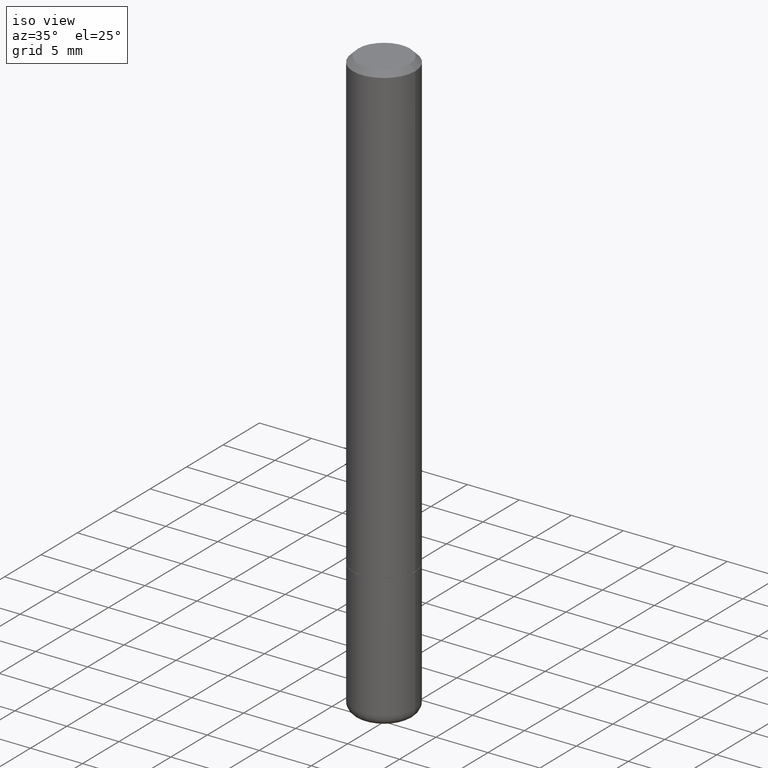
[diagram: clean part render]
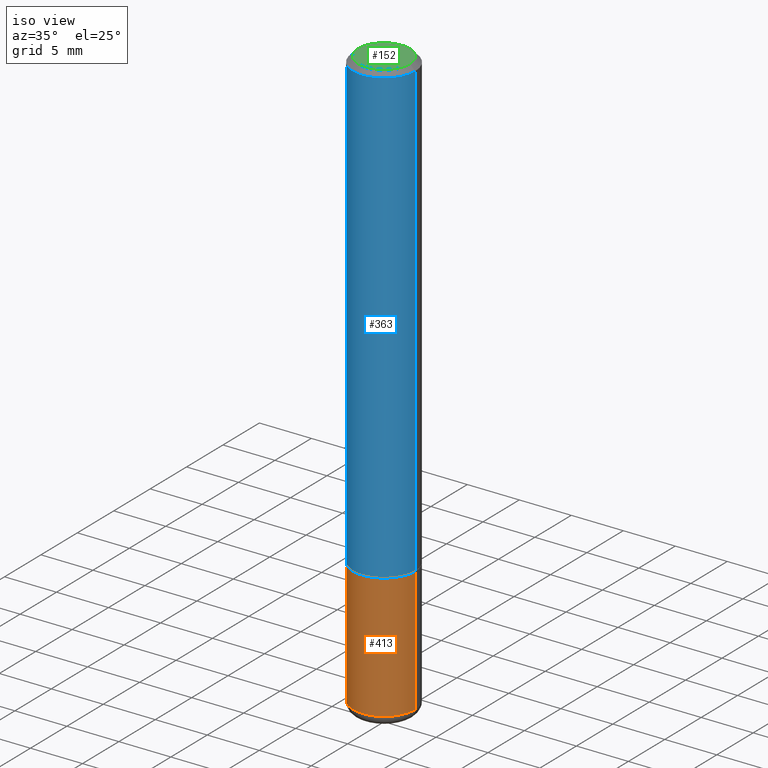
[diagram: same view with three faces highlighted in distinct colors, each labeled with its STEP entity id]
A machine part, iso view with three faces highlighted in distinct colors.
Their STEP definitions:

[orange] entity #413 — the highlighted cylindrical surface (partial cylindrical patch) has radius 2.9997 mm, axis along (-0, 0, 1).
#2 = ORIENTED_EDGE ( 'NONE', *, *, #193, .F. ) ;
#5 = LINE ( 'NONE', #175, #372 ) ;
#7 = VERTEX_POINT ( 'NONE', #319 ) ;
#9 = DIRECTION ( 'NONE',  ( -2.445468806185136597E-29, 3.491481338843145583E-15, 1.000000000000000000 ) ) ;
#19 = AXIS2_PLACEMENT_3D ( 'NONE', #389, #297, #129 ) ;
#28 = VECTOR ( 'NONE', #394, 39.37007874015748143 ) ;
#36 = CARTESIAN_POINT ( 'NONE',  ( -0.1180999999999999966, -6.033830044580054299E-15, -1.732299999999999951 ) ) ;
#40 = CARTESIAN_POINT ( 'NONE',  ( 5.391525076996371277E-29, -7.697668907747483125E-15, -2.204700000000000326 ) ) ;
#47 = CARTESIAN_POINT ( 'NONE',  ( -0.1180999999999998995, -6.858517936814806506E-15, -2.204700000000000326 ) ) ;
#61 = DIRECTION ( 'NONE',  ( 1.000000000000000000, -6.982962677686265133E-15, 0.000000000000000000 ) ) ;
#82 = ORIENTED_EDGE ( 'NONE', *, *, #311, .F. ) ;
#90 = CARTESIAN_POINT ( 'NONE',  ( 0.1180999999999998995, -8.522356799982231388E-15, -2.204700000000000326 ) ) ;
#109 = CIRCLE ( 'NONE', #19, 0.1180999999999999966 ) ;
#112 = AXIS2_PLACEMENT_3D ( 'NONE', #254, #200, #396 ) ;
#120 = EDGE_LOOP ( 'NONE', ( #82, #347, #169, #2 ) ) ;
#129 = DIRECTION ( 'NONE',  ( 1.000000000000000000, -6.982962677686265133E-15, 0.000000000000000000 ) ) ;
#146 = CIRCLE ( 'NONE', #179, 0.1180999999999999966 ) ;
#167 = LINE ( 'NONE', #327, #28 ) ;
#169 = ORIENTED_EDGE ( 'NONE', *, *, #170, .T. ) ;
#170 = EDGE_CURVE ( 'NONE', #370, #7, #167, .T. ) ;
#175 = CARTESIAN_POINT ( 'NONE',  ( -0.1180999999999999966, 8.391509709326782957E-16, -5.809262341591043784E-30 ) ) ;
#179 = AXIS2_PLACEMENT_3D ( 'NONE', #40, #9, #61 ) ;
#193 = EDGE_CURVE ( 'NONE', #262, #7, #109, .T. ) ;
#200 = DIRECTION ( 'NONE',  ( -2.445468806185136597E-29, 3.491481338843145583E-15, 1.000000000000000000 ) ) ;
#254 = CARTESIAN_POINT ( 'NONE',  ( 0.000000000000000000, 0.000000000000000000, 0.000000000000000000 ) ) ;
#260 = DIRECTION ( 'NONE',  ( -2.445468806185136877E-29, 3.491481338843145188E-15, 1.000000000000000000 ) ) ;
#262 = VERTEX_POINT ( 'NONE', #36 ) ;
#297 = DIRECTION ( 'NONE',  ( -2.445468806185136597E-29, 3.491481338843145583E-15, 1.000000000000000000 ) ) ;
#302 = CYLINDRICAL_SURFACE ( 'NONE', #112, 0.1180999999999999966 ) ;
#311 = EDGE_CURVE ( 'NONE', #336, #262, #5, .T. ) ;
#319 = CARTESIAN_POINT ( 'NONE',  ( 0.1180999999999999966, -6.872981015512729341E-15, -1.732299999999999951 ) ) ;
#327 = CARTESIAN_POINT ( 'NONE',  ( 0.1180999999999999966, -8.246878922347480654E-16, 5.758764772215000440E-30 ) ) ;
#336 = VERTEX_POINT ( 'NONE', #47 ) ;
#343 = EDGE_CURVE ( 'NONE', #336, #370, #146, .T. ) ;
#347 = ORIENTED_EDGE ( 'NONE', *, *, #343, .T. ) ;
#357 = FACE_OUTER_BOUND ( 'NONE', #120, .T. ) ;
#370 = VERTEX_POINT ( 'NONE', #90 ) ;
#372 = VECTOR ( 'NONE', #260, 39.37007874015748143 ) ;
#389 = CARTESIAN_POINT ( 'NONE',  ( 4.236285612954512392E-29, -6.048293123277981078E-15, -1.732299999999999951 ) ) ;
#394 = DIRECTION ( 'NONE',  ( -2.445468806185136877E-29, 3.491481338843145188E-15, 1.000000000000000000 ) ) ;
#396 = DIRECTION ( 'NONE',  ( 1.000000000000000000, -6.982962677686266711E-15, 4.876176775795936353E-29 ) ) ;
#413 = ADVANCED_FACE ( 'NONE', ( #357 ), #302, .T. ) ;

[blue] entity #363 — the highlighted cylindrical surface (partial cylindrical patch) has radius 2.9997 mm, axis along (-0, 0, 1).
#11 = ORIENTED_EDGE ( 'NONE', *, *, #136, .F. ) ;
#13 = LINE ( 'NONE', #300, #256 ) ;
#20 = EDGE_CURVE ( 'NONE', #294, #107, #399, .T. ) ;
#29 = VERTEX_POINT ( 'NONE', #253 ) ;
#31 = CARTESIAN_POINT ( 'NONE',  ( -0.1181000000000000383, 7.548582654578851616E-16, -0.02000000000000007674 ) ) ;
#32 = FACE_OUTER_BOUND ( 'NONE', #62, .T. ) ;
#60 = LINE ( 'NONE', #404, #275 ) ;
#62 = EDGE_LOOP ( 'NONE', ( #390, #249, #316, #11 ) ) ;
#81 = CIRCLE ( 'NONE', #217, 0.1181000000000000383 ) ;
#89 = VERTEX_POINT ( 'NONE', #31 ) ;
#107 = VERTEX_POINT ( 'NONE', #286 ) ;
#110 = EDGE_CURVE ( 'NONE', #294, #89, #60, .T. ) ;
#115 = DIRECTION ( 'NONE',  ( -2.445468806185136597E-29, 3.491481338843145583E-15, 1.000000000000000000 ) ) ;
#128 = CARTESIAN_POINT ( 'NONE',  ( 0.000000000000000000, 0.000000000000000000, 0.000000000000000000 ) ) ;
#136 = EDGE_CURVE ( 'NONE', #89, #29, #81, .T. ) ;
#163 = CYLINDRICAL_SURFACE ( 'NONE', #165, 0.1181000000000001493 ) ;
#165 = AXIS2_PLACEMENT_3D ( 'NONE', #128, #115, #295 ) ;
#181 = DIRECTION ( 'NONE',  ( 1.000000000000000000, -6.982962677686264344E-15, 0.000000000000000000 ) ) ;
#217 = AXIS2_PLACEMENT_3D ( 'NONE', #331, #355, #234 ) ;
#234 = DIRECTION ( 'NONE',  ( 1.000000000000000000, -6.982962677686266711E-15, 0.000000000000000000 ) ) ;
#249 = ORIENTED_EDGE ( 'NONE', *, *, #20, .T. ) ;
#253 = CARTESIAN_POINT ( 'NONE',  ( 0.1181000000000000383, -8.800544403136813305E-16, -0.02000000000000007674 ) ) ;
#256 = VECTOR ( 'NONE', #351, 39.37007874015748143 ) ;
#275 = VECTOR ( 'NONE', #323, 39.37007874015748143 ) ;
#286 = CARTESIAN_POINT ( 'NONE',  ( 0.1181000000000002742, -6.869489534173887122E-15, -1.731299999999999839 ) ) ;
#294 = VERTEX_POINT ( 'NONE', #360 ) ;
#295 = DIRECTION ( 'NONE',  ( 1.000000000000000000, -6.982962677686266711E-15, 4.876176775795936353E-29 ) ) ;
#300 = CARTESIAN_POINT ( 'NONE',  ( 0.1181000000000001493, -8.246878922347491501E-16, 5.758764772215008148E-30 ) ) ;
#310 = CARTESIAN_POINT ( 'NONE',  ( 4.233840144148326789E-29, -6.044801641939137282E-15, -1.731299999999999839 ) ) ;
#316 = ORIENTED_EDGE ( 'NONE', *, *, #340, .T. ) ;
#323 = DIRECTION ( 'NONE',  ( -2.445468806185136877E-29, 3.491481338843145188E-15, 1.000000000000000000 ) ) ;
#331 = CARTESIAN_POINT ( 'NONE',  ( 4.890937612370292426E-31, -6.982962677686317493E-17, -0.02000000000000007674 ) ) ;
#339 = DIRECTION ( 'NONE',  ( -2.445468806185136597E-29, 3.491481338843145583E-15, 1.000000000000000000 ) ) ;
#340 = EDGE_CURVE ( 'NONE', #107, #29, #13, .T. ) ;
#351 = DIRECTION ( 'NONE',  ( -2.445468806185136877E-29, 3.491481338843145188E-15, 1.000000000000000000 ) ) ;
#355 = DIRECTION ( 'NONE',  ( -2.445468806185136597E-29, 3.491481338843145583E-15, 1.000000000000000000 ) ) ;
#358 = AXIS2_PLACEMENT_3D ( 'NONE', #310, #339, #181 ) ;
#360 = CARTESIAN_POINT ( 'NONE',  ( -0.1181000000000002881, -2.218164663425316571E-15, -1.731299999999999839 ) ) ;
#363 = ADVANCED_FACE ( 'NONE', ( #32 ), #163, .T. ) ;
#390 = ORIENTED_EDGE ( 'NONE', *, *, #110, .F. ) ;
#399 = CIRCLE ( 'NONE', #358, 0.1181000000000002742 ) ;
#404 = CARTESIAN_POINT ( 'NONE',  ( -0.1181000000000001493, 8.391509709326793804E-16, -5.809262341591050790E-30 ) ) ;

[green] entity #152 — the highlighted planar face has unit normal (0, -0, -1).
#3 = EDGE_CURVE ( 'NONE', #345, #130, #348, .T. ) ;
#53 = AXIS2_PLACEMENT_3D ( 'NONE', #66, #367, #99 ) ;
#66 = CARTESIAN_POINT ( 'NONE',  ( 6.850286386810210746E-16, 0.09809999999999977072, -2.251302258627504304E-16 ) ) ;
#69 = DIRECTION ( 'NONE',  ( 1.000000000000000000, -6.982962677686266711E-15, 4.884890577880259924E-29 ) ) ;
#70 = FACE_OUTER_BOUND ( 'NONE', #159, .T. ) ;
#99 = DIRECTION ( 'NONE',  ( -1.000000000000000000, 6.982962677686265922E-15, -4.876176775795935793E-29 ) ) ;
#121 = CARTESIAN_POINT ( 'NONE',  ( -5.741182778843708482E-45, 8.196887437092460066E-31, 2.347681869555226296E-16 ) ) ;
#124 = DIRECTION ( 'NONE',  ( -2.445468806185136597E-29, 3.491481338843145583E-15, 1.000000000000000000 ) ) ;
#125 = AXIS2_PLACEMENT_3D ( 'NONE', #354, #384, #69 ) ;
#130 = VERTEX_POINT ( 'NONE', #225 ) ;
#134 = ORIENTED_EDGE ( 'NONE', *, *, #3, .T. ) ;
#137 = CARTESIAN_POINT ( 'NONE',  ( -0.09809999999999977072, 7.199434520694536111E-16, 2.347681869555176992E-16 ) ) ;
#152 = ADVANCED_FACE ( 'NONE', ( #70 ), #198, .F. ) ;
#159 = EDGE_LOOP ( 'NONE', ( #134, #368 ) ) ;
#198 = PLANE ( 'NONE',  #53 ) ;
#210 = CIRCLE ( 'NONE', #125, 0.09809999999999977072 ) ;
#222 = EDGE_CURVE ( 'NONE', #130, #345, #210, .T. ) ;
#225 = CARTESIAN_POINT ( 'NONE',  ( 0.09809999999999977072, -7.765346469475330681E-16, 2.347681869555277079E-16 ) ) ;
#245 = DIRECTION ( 'NONE',  ( 1.000000000000000000, -6.982962677686266711E-15, 4.884890577880259924E-29 ) ) ;
#341 = AXIS2_PLACEMENT_3D ( 'NONE', #121, #124, #245 ) ;
#345 = VERTEX_POINT ( 'NONE', #137 ) ;
#348 = CIRCLE ( 'NONE', #341, 0.09809999999999977072 ) ;
#354 = CARTESIAN_POINT ( 'NONE',  ( -5.741182778843708482E-45, 8.196887437092460066E-31, 2.347681869555226296E-16 ) ) ;
#367 = DIRECTION ( 'NONE',  ( 2.438088387897960049E-29, -3.491481338843145188E-15, -1.000000000000000000 ) ) ;
#368 = ORIENTED_EDGE ( 'NONE', *, *, #222, .T. ) ;
#384 = DIRECTION ( 'NONE',  ( -2.445468806185136597E-29, 3.491481338843145583E-15, 1.000000000000000000 ) ) ;